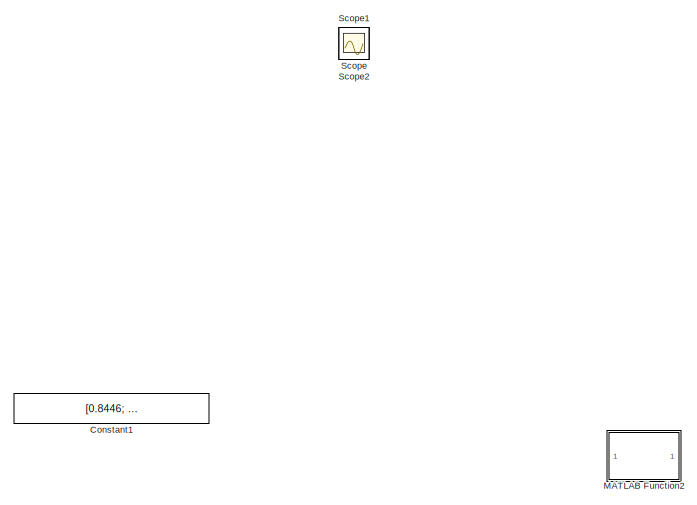
[diagram: root canvas - part 1/2, left side, full height]
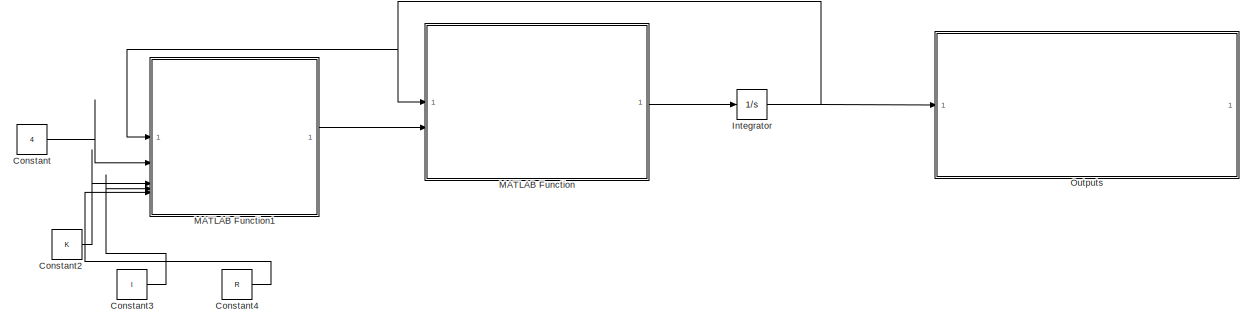
[diagram: root canvas - part 2/2, bottom right region]
MODEL slx_b0f3f7ac8a30
KIND model
CONFIG AbsTol = auto
CONFIG EnableMultiTasking = off
CONFIG FixedStep = 0.01
CONFIG MaxStep = auto
CONFIG MinStep = auto
CONFIG RelTol = 1e-3
CONFIG SampleTimeConstraint = Unconstrained
CONFIG SolverName = ode4
CONFIG StartTime = 0.0
CONFIG StopTime = 20
WORKSPACE source: MATLAB code (in-file)
WORKSPACE m = 12
WORKSPACE Ixx = 1.86
WORKSPACE Iyy = 2.031
WORKSPACE Ixy = 0
WORKSPACE Ixz = 0
WORKSPACE Iyz = 0
WORKSPACE Izz = 3.617
WORKSPACE g = 9.81
WORKSPACE b = 0.032
WORKSPACE l = 0.40  (= 0.4)
WORKSPACE RPM = 3000
WORKSPACE omega_w = 2 * pi * RPM / 60  (= 314.159265359)
WORKSPACE R = 0.355
WORKSPACE rho = 1.225
WORKSPACE K = rho * pi * R^2 * (omega_w * R)^2  (= 6032.52484186)
WORKSPACE V_tip = omega_w * R  (= 111.526539202)
WORKSPACE blade_area = pi * R^2  (= 0.395919214169)
WORKSPACE CT_init = (0.25*m*g/(rho*blade_area*V_tip^2))  (= 0.00487855429882)
WORKSPACE I = diag([Ixx, Iyy, Izz])
WORKSPACE zeta_quat = diag([0.95, 0.95, 0.95, 0.95])
WORKSPACE omega_n_quat = diag([25, 25, 25, 25])
WORKSPACE zeta_x = diag([0.95, 0.95, 0.95])
WORKSPACE omega_n_x = diag([10, 10, 15])
BLOCK [Constant] Constant
  Value = 4
BLOCK [Constant] Constant1
  Value = [0.8446;    0.1913;    0.4619;    0.1913]
BLOCK [Constant] Constant2
  Value = K
BLOCK [Constant] Constant3
  Value = l
BLOCK [Constant] Constant4
  Value = R
BLOCK [Integrator] Integrator
  InitialCondition = [0; 0; 0; 0; 0; 0; 1; 0; 0; 0; 0; 0; 0; 0.004; 0.004; 0.004; 0.004];
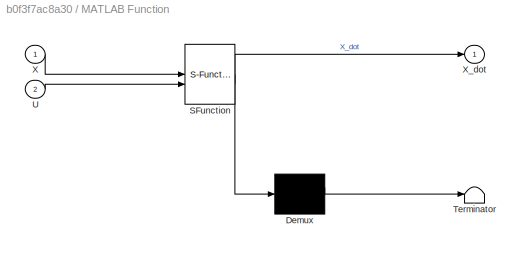
BLOCK [SubSystem] MATLAB Function
  ErrorFcn = Stateflow.Translate.translate
  PermitHierarchicalResolution = ExplicitOnly
  SFBlockType = MATLAB Function
  TreatAsAtomicUnit = on
BLOCK [Demux] MATLAB Function/ Demux 
  Outputs = 1
BLOCK [S-Function] MATLAB Function/ SFunction 
  EnableBusSupport = on
  FunctionName = sf_sfun
  PortCounts = [2 2]
  SFcnIsStateOwnerBlock = off
  SFunctionDeploymentMode = off
  Tag = Stateflow S-Function 2
BLOCK [Terminator] MATLAB Function/ Terminator 
BLOCK [Inport] MATLAB Function/U
  Port = 2
BLOCK [Inport] MATLAB Function/X
BLOCK [Outport] MATLAB Function/X_dot
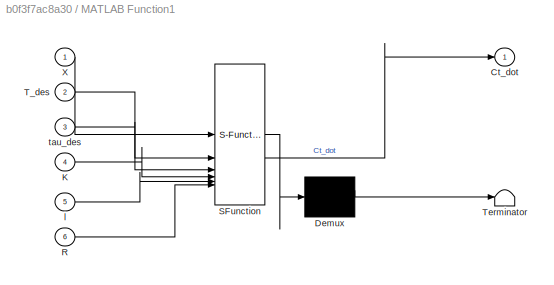
BLOCK [SubSystem] MATLAB Function1
  ErrorFcn = Stateflow.Translate.translate
  PermitHierarchicalResolution = ExplicitOnly
  SFBlockType = MATLAB Function
  TreatAsAtomicUnit = on
BLOCK [Demux] MATLAB Function1/ Demux 
  Outputs = 1
BLOCK [S-Function] MATLAB Function1/ SFunction 
  EnableBusSupport = on
  FunctionName = sf_sfun
  PortCounts = [6 2]
  SFcnIsStateOwnerBlock = off
  SFunctionDeploymentMode = off
  Tag = Stateflow S-Function 1
BLOCK [Terminator] MATLAB Function1/ Terminator 
BLOCK [Outport] MATLAB Function1/Ct_dot
BLOCK [Inport] MATLAB Function1/K
  Port = 4
BLOCK [Inport] MATLAB Function1/R
  Port = 6
BLOCK [Inport] MATLAB Function1/T_des
  Port = 2
BLOCK [Inport] MATLAB Function1/X
BLOCK [Inport] MATLAB Function1/l
  Port = 5
BLOCK [Inport] MATLAB Function1/tau_des
  Port = 3
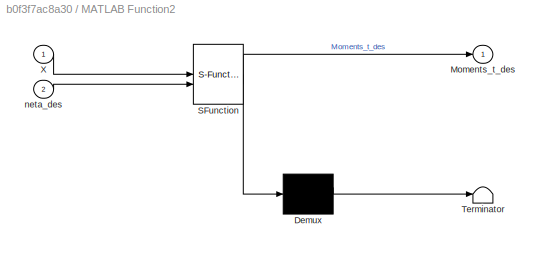
BLOCK [SubSystem] MATLAB Function2
  ErrorFcn = Stateflow.Translate.translate
  PermitHierarchicalResolution = ExplicitOnly
  SFBlockType = MATLAB Function
  TreatAsAtomicUnit = on
BLOCK [Demux] MATLAB Function2/ Demux 
  Outputs = 1
BLOCK [S-Function] MATLAB Function2/ SFunction 
  EnableBusSupport = off
  FunctionName = sf_sfun
  PortCounts = [2 2]
  SFcnIsStateOwnerBlock = off
  SFunctionDeploymentMode = off
  Tag = Stateflow S-Function 3
BLOCK [Terminator] MATLAB Function2/ Terminator 
BLOCK [Outport] MATLAB Function2/Moments_t_des
BLOCK [Inport] MATLAB Function2/X
BLOCK [Inport] MATLAB Function2/neta_des
  Port = 2
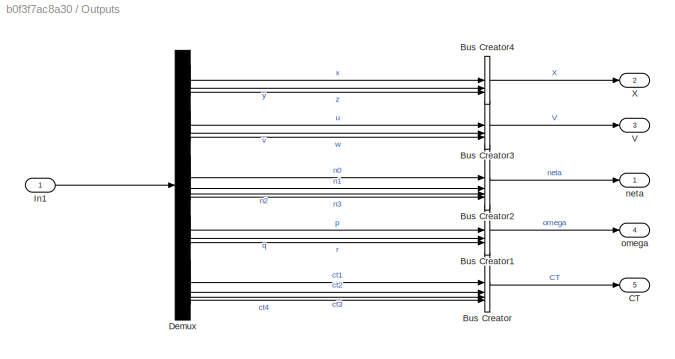
BLOCK [SubSystem] Outputs
  PortSchema = {"entries":[{"content":{"sides":[{"content":{"connectorIds":["In1"]},"type":"ConnectorPlacement.EquallySpacedRectSide","uuid":"dfed46bb-4077-4d2c-a6e0-595fd02d135c"},{"content":{"connectorIds":["Out1","Out2","Out3","Out4"],"side":"RIGHT"},"type":"ConnectorPlacement.EquallySpacedRectSide","uuid":"89f2e8ce-3964-4221-b3a8-6a078739bdb5"},{"content":{"side":"TOP"},"type":"ConnectorPlacement.EquallySpac...<+393ch>
BLOCK [BusCreator] Outputs/Bus Creator
  DisplayOption = bar
  InheritFromInputs = on
  Inputs = 4
BLOCK [BusCreator] Outputs/Bus Creator1
  DisplayOption = bar
  InheritFromInputs = on
  Inputs = 3
BLOCK [BusCreator] Outputs/Bus Creator2
  DisplayOption = bar
  InheritFromInputs = on
  Inputs = 4
BLOCK [BusCreator] Outputs/Bus Creator3
  DisplayOption = bar
  InheritFromInputs = on
  Inputs = 3
BLOCK [BusCreator] Outputs/Bus Creator4
  DisplayOption = bar
  InheritFromInputs = on
  Inputs = 3
BLOCK [Outport] Outputs/CT
  Port = 5
BLOCK [Demux] Outputs/Demux
  Outputs = 17
BLOCK [Inport] Outputs/In1
BLOCK [Outport] Outputs/V
  Port = 3
BLOCK [Outport] Outputs/X
  Port = 2
BLOCK [Outport] Outputs/neta
BLOCK [Outport] Outputs/omega
  Port = 4
BLOCK [Scope] Scope
  Floating = off
  IOType = viewer
  NumInputPorts = 1
  ScopeSpecificationString = Simulink.scopes.TimeScopeBlockCfg('CurrentConfiguration', extmgr.ConfigurationSet(extmgr.Configuration('Core','General UI',true),extmgr.Configuration('Core','Source UI',true),extmgr.Configuration('Sources','WiredSimulink',true),extmgr.Configuration('Visuals','Time Domain',true,'SerializedDisplays',{struct('MinYLimReal','-10.00000','MaxYLimReal','10.00000','YLabelReal','','MinYLimMag','0.00000','Ma...<+1326ch>
BLOCK [Scope] Scope1
  Floating = off
  IOType = viewer
  NumInputPorts = 1
  ScopeSpecificationString = Simulink.scopes.TimeScopeBlockCfg('CurrentConfiguration', extmgr.ConfigurationSet(extmgr.Configuration('Core','General UI',true),extmgr.Configuration('Core','Source UI',true),extmgr.Configuration('Sources','WiredSimulink',true,'DataLoggingVariableName','ScopeData1'),extmgr.Configuration('Visuals','Time Domain',true,'SerializedDisplays',{struct('MinYLimReal','-10.00000','MaxYLimReal','10.00000','YL...<+1365ch>
BLOCK [Scope] Scope2
  Floating = off
  IOType = viewer
  NumInputPorts = 1
  ScopeSpecificationString = Simulink.scopes.TimeScopeBlockCfg('CurrentConfiguration', extmgr.ConfigurationSet(extmgr.Configuration('Core','General UI',true),extmgr.Configuration('Core','Source UI',true),extmgr.Configuration('Sources','WiredSimulink',true,'DataLoggingVariableName','ScopeData2'),extmgr.Configuration('Visuals','Time Domain',true,'SerializedDisplays',{struct('MinYLimReal','-30597004627113339108252281333425382900...<+3179ch>
LINE Constant2:1 -> MATLAB Function1:4
LINE Constant3:1 -> MATLAB Function1:5
LINE Constant4:1 -> MATLAB Function1:6
LINE Constant:1 -> MATLAB Function1:2
NET Integrator:1 -> MATLAB Function1:1, MATLAB Function:1, Outputs:1
LINE MATLAB Function1:1 -> MATLAB Function:2
LINE MATLAB Function:1 -> Integrator:1
LINE Outputs/Bus Creator1:1 -> Outputs/omega:1
LINE Outputs/Bus Creator2:1 -> Outputs/neta:1
LINE Outputs/Bus Creator3:1 -> Outputs/V:1
LINE Outputs/Bus Creator4:1 -> Outputs/X:1
LINE Outputs/Bus Creator:1 -> Outputs/CT:1
LINE Outputs/Demux:1 -> Outputs/Bus Creator4:1
LINE Outputs/Demux:10 -> Outputs/Bus Creator2:4
LINE Outputs/Demux:11 -> Outputs/Bus Creator1:1
LINE Outputs/Demux:12 -> Outputs/Bus Creator1:2
LINE Outputs/Demux:13 -> Outputs/Bus Creator1:3
LINE Outputs/Demux:14 -> Outputs/Bus Creator:1
LINE Outputs/Demux:15 -> Outputs/Bus Creator:2
LINE Outputs/Demux:16 -> Outputs/Bus Creator:3
LINE Outputs/Demux:17 -> Outputs/Bus Creator:4
LINE Outputs/Demux:2 -> Outputs/Bus Creator4:2
LINE Outputs/Demux:3 -> Outputs/Bus Creator4:3
LINE Outputs/Demux:4 -> Outputs/Bus Creator3:1
LINE Outputs/Demux:5 -> Outputs/Bus Creator3:2
LINE Outputs/Demux:6 -> Outputs/Bus Creator3:3
LINE Outputs/Demux:7 -> Outputs/Bus Creator2:1
LINE Outputs/Demux:8 -> Outputs/Bus Creator2:2
LINE Outputs/Demux:9 -> Outputs/Bus Creator2:3
LINE Outputs/In1:1 -> Outputs/Demux:1
note: NET lines group one-source signal fan-out (src -> all destinations, sorted); 1:1 wires keep LINE
CHART MATLAB Function1 states=1 transitions=1
  STATE_LABEL 'eML_blk_kernel()'
  STATE_LABEL 'SCRIPT:\nfunction Ct_dot  = control_allocation(X, T_des, tau_des, K, l, R)\n    \n\n\nct1 = X(14);\nct2 = X(15);\nct3 = X(16);\nct4 = X(17);\n\nkt = 125;\nkl = 125;\nkm = 125;\nkn = 1000;\nT = K*(ct1 + ct2 + ct3 + ct4);\nL_tbar = K * l *(ct1 - ct2 - ct3 + ct4);\nM_t = K * l * (ct1 + ct2 - ct3 - ct4);\nN_t = (K*R/sqrt(2)) * (abs(ct1)^1.5 - abs(ct2)^1.5 + abs(ct3)^1.5 - abs(ct4)^1.5);\n\nL_t_bar_des = tau_des(1);\nM_t_...<+493ch>'
CHART MATLAB Function states=1 transitions=1
  STATE_LABEL 'eML_blk_kernel()'
  STATE_LABEL 'SCRIPT:\nfunction X_dot = dynamics2(X,U)\n\n% k_t = 1e-3; % Thrust Coefficient\n\n%% Parameters\nm               = 12;                       % Mass in kg\ng               = 9.81;   \nl               = 0.40;                         % Arm length in m\nrho = 1.225;\nR               = 0.355;   \nomega_w = 3000;\nK               = rho * pi * R^2 * (omega_w * R)^2;\n\n\n\nI = diag([1.86, 2.031, 3.617]);\nI_x = I(1,1);\nI...<+2258ch>'
CHART MATLAB Function2 states=1 transitions=1
  STATE_LABEL 'eML_blk_kernel()'
  STATE_LABEL "SCRIPT:\nfunction Moments_t_des = inner_loop(X, neta_des)\n\n% X(4:7) = Quaternions\n% Quater_d        = Xd(7:11);\nneta_d = neta_des';\nneta         = X(7:10)';\nomega      = X(11:13)';\n\nparameters;\n\nneta_d = neta_d / norm(neta_d);\n\nneta_d_conj = quaternConj(neta_d);\n\n\nneta_e = quaternProd(neta_d_conj', neta);\n\nneta_e = neta_e / norm(neta_e);\n\n\na1 = quaternProd(neta_e, [0, omega]);\n\n\n\nomega_d = quaternP...<+518ch>"
CHART  states=0 transitions=0
CHART  states=0 transitions=0
CHART  states=0 transitions=0
